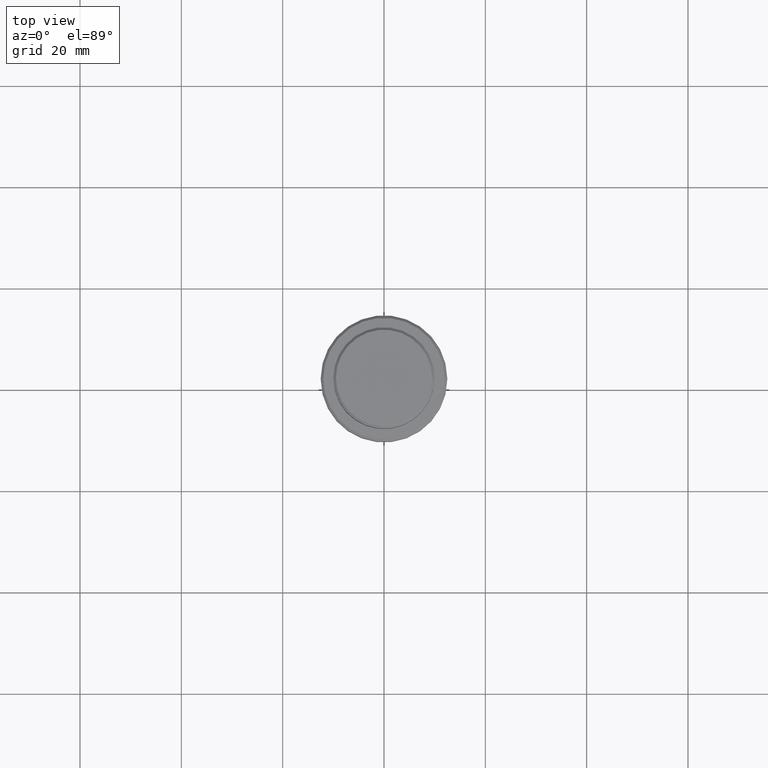
[diagram: clean part render]
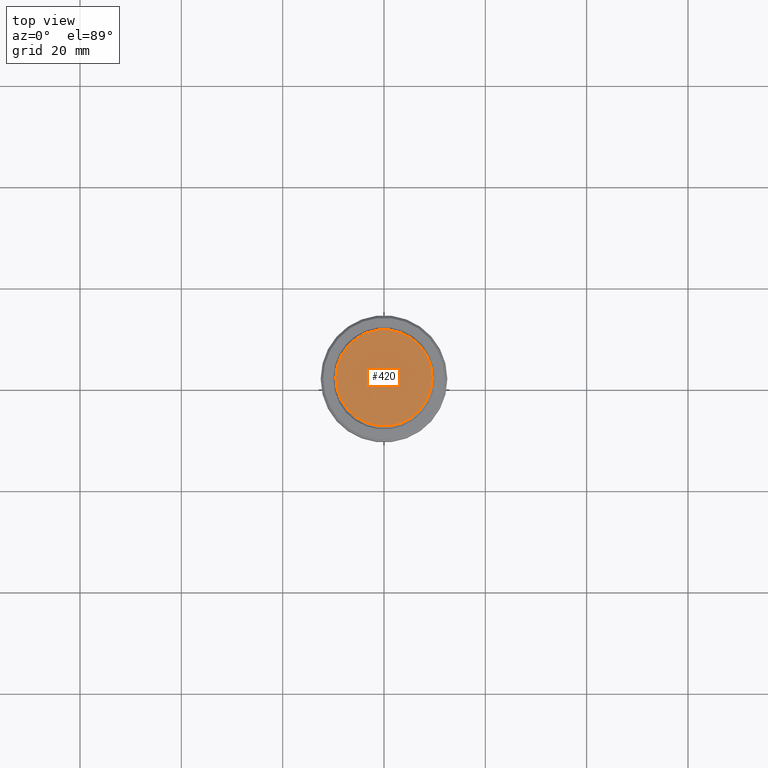
[diagram: same view with one face highlighted and labeled with its STEP entity id]
A machine part, top view. The second image highlights one B-rep face of the part: STEP entity #420.
In plain terms, the highlighted planar face has unit normal (0, -0, 1).
Its self-contained STEP definition (entity closure, byte-faithful):
#32 = AXIS2_PLACEMENT_3D ( 'NONE', #721, #1292, #203 ) ;
#135 = CARTESIAN_POINT ( 'NONE',  ( 9.500000000000008882, 1.194030629168669864E-15, 0.000000000000000000 ) ) ;
#203 = DIRECTION ( 'NONE',  ( 1.000000000000000000, 0.000000000000000000, 0.000000000000000000 ) ) ;
#217 = EDGE_CURVE ( 'NONE', #1080, #731, #1015, .T. ) ;
#312 = CARTESIAN_POINT ( 'NONE',  ( 0.000000000000000000, 0.000000000000000000, 0.000000000000000000 ) ) ;
#356 = CARTESIAN_POINT ( 'NONE',  ( 0.000000000000000000, 0.000000000000000000, 0.000000000000000000 ) ) ;
#383 = EDGE_CURVE ( 'NONE', #731, #1080, #855, .T. ) ;
#420 = ADVANCED_FACE ( 'NONE', ( #1181 ), #518, .T. ) ;
#511 = AXIS2_PLACEMENT_3D ( 'NONE', #312, #1165, #1282 ) ;
#518 = PLANE ( 'NONE',  #511 ) ;
#529 = ORIENTED_EDGE ( 'NONE', *, *, #383, .T. ) ;
#566 = CARTESIAN_POINT ( 'NONE',  ( -9.500000000000008882, 0.000000000000000000, 0.000000000000000000 ) ) ;
#663 = DIRECTION ( 'NONE',  ( -0.000000000000000000, -0.000000000000000000, 1.000000000000000000 ) ) ;
#721 = CARTESIAN_POINT ( 'NONE',  ( 0.000000000000000000, 0.000000000000000000, 0.000000000000000000 ) ) ;
#731 = VERTEX_POINT ( 'NONE', #135 ) ;
#743 = AXIS2_PLACEMENT_3D ( 'NONE', #356, #663, #1325 ) ;
#841 = ORIENTED_EDGE ( 'NONE', *, *, #217, .T. ) ;
#855 = CIRCLE ( 'NONE', #32, 9.500000000000008882 ) ;
#1015 = CIRCLE ( 'NONE', #743, 9.500000000000008882 ) ;
#1080 = VERTEX_POINT ( 'NONE', #566 ) ;
#1165 = DIRECTION ( 'NONE',  ( 0.000000000000000000, -0.000000000000000000, 1.000000000000000000 ) ) ;
#1181 = FACE_OUTER_BOUND ( 'NONE', #1216, .T. ) ;
#1216 = EDGE_LOOP ( 'NONE', ( #841, #529 ) ) ;
#1282 = DIRECTION ( 'NONE',  ( 1.000000000000000000, 0.000000000000000000, 0.000000000000000000 ) ) ;
#1292 = DIRECTION ( 'NONE',  ( -0.000000000000000000, -0.000000000000000000, 1.000000000000000000 ) ) ;
#1325 = DIRECTION ( 'NONE',  ( 1.000000000000000000, 0.000000000000000000, 0.000000000000000000 ) ) ;